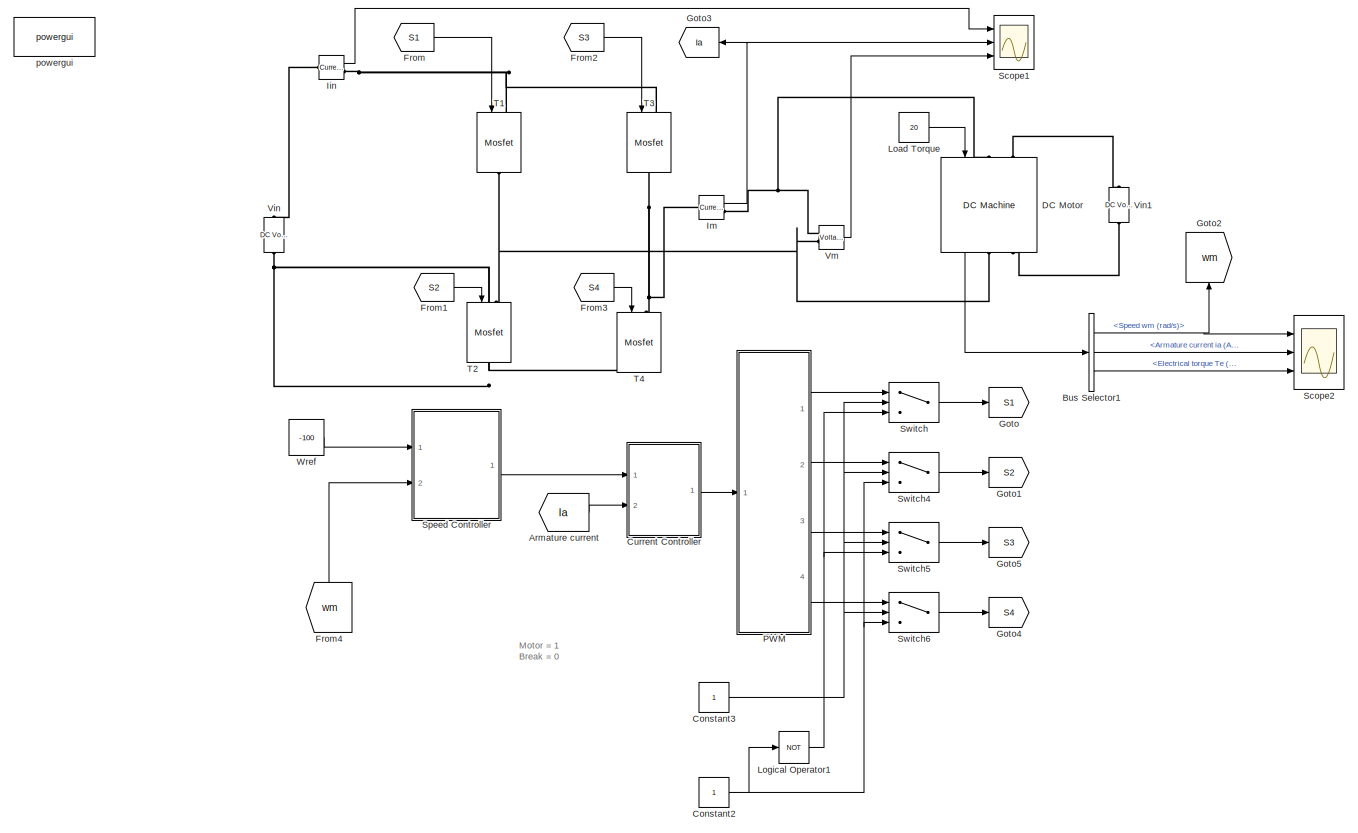
[diagram: root canvas - part 1/1, most of the canvas]
MODEL slx_14fbf402b7de
KIND model
CONFIG AbsTol = auto
CONFIG EnableMultiTasking = off
CONFIG FixedStep = auto
CONFIG MaxStep = auto
CONFIG MinStep = auto
CONFIG RelTol = 1e-3
CONFIG SampleTimeConstraint = Unconstrained
CONFIG Solver = VariableStepAuto
CONFIG SolverName = VariableStepAuto
CONFIG StartTime = 0.0
CONFIG StopTime = inf
BLOCK [From] Armature current
  GotoTag = Ia
BLOCK [BusSelector] Bus Selector1
  OutputAsBus = off
  OutputSignals = Speed wm (rad/s),Armature current ia (A),Electrical torque Te (n m)
  Ports = [1, 3]
BLOCK [Constant] Constant2
BLOCK [Constant] Constant3
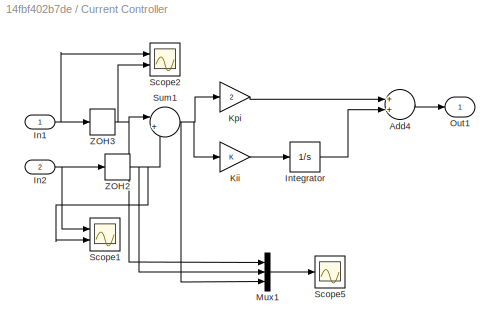
BLOCK [SubSystem] Current Controller
  Ports = [2, 1]
  RequestExecContextInheritance = off
BLOCK [Sum] Current Controller/Add4
  InputSameDT = off
  OutDataTypeStr = Inherit: Inherit via internal rule
  Ports = [2, 1]
  SaturateOnIntegerOverflow = off
BLOCK [Inport] Current Controller/In1
  IconDisplay = Port number
BLOCK [Inport] Current Controller/In2
  IconDisplay = Port number
  Port = 2
BLOCK [Integrator] Current Controller/Integrator
  Ports = [1, 1]
BLOCK [Gain] Current Controller/Kii
  OutDataTypeStr = Inherit: Inherit via internal rule
  ParamDataTypeStr = Inherit: Inherit via internal rule
  SaturateOnIntegerOverflow = off
BLOCK [Gain] Current Controller/Kpi
  Gain = 2
  OutDataTypeStr = Inherit: Inherit via internal rule
  ParamDataTypeStr = Inherit: Inherit via internal rule
  SaturateOnIntegerOverflow = off
BLOCK [Mux] Current Controller/Mux1
  DisplayOption = bar
  Inputs = 3
  Ports = [3, 1]
BLOCK [Outport] Current Controller/Out1
  IconDisplay = Port number
  VectorParamsAs1DForOutWhenUnconnected = off
BLOCK [Scope] Current Controller/Scope1
  Floating = off
  NumInputPorts = 2
  Ports = [2]
  ScopeSpecificationString = Simulink.scopes.TimeScopeBlockCfg('CurrentConfiguration', extmgr.ConfigurationSet(extmgr.Configuration('Core','General UI',true,'FigureColor',[1 1 1]),extmgr.Configuration('Core','Source UI',true),extmgr.Configuration('Sources','WiredSimulink',true,'DataLoggingVariableName','ScopeData3','DataLoggingSaveFormat','Array','DataLoggingDecimation','1','DataLoggingDecimateData',true),extmgr.Configuration...<+2748ch>
BLOCK [Scope] Current Controller/Scope2
  Floating = off
  NumInputPorts = 2
  Ports = [2]
  ScopeSpecificationString = Simulink.scopes.TimeScopeBlockCfg('CurrentConfiguration', extmgr.ConfigurationSet(extmgr.Configuration('Core','General UI',true,'FigureColor',[1 1 1]),extmgr.Configuration('Core','Source UI',true),extmgr.Configuration('Sources','WiredSimulink',true,'DataLoggingVariableName','ScopeData4','DataLoggingSaveFormat','Array','DataLoggingDecimation','1','DataLoggingDecimateData',true),extmgr.Configuration...<+2748ch>
BLOCK [Scope] Current Controller/Scope5
  Floating = off
  NumInputPorts = 1
  Ports = [1]
  ScopeSpecificationString = Simulink.scopes.TimeScopeBlockCfg('CurrentConfiguration', extmgr.ConfigurationSet(extmgr.Configuration('Core','General UI',true,'FigureColor',[1 1 1]),extmgr.Configuration('Core','Source UI',true),extmgr.Configuration('Sources','WiredSimulink',true,'DataLoggingVariableName','ScopeData5','DataLoggingSaveFormat','Array','DataLoggingDecimation','1','DataLoggingDecimateData',true),extmgr.Configuration...<+2748ch>
BLOCK [Sum] Current Controller/Sum1
  IconShape = round
  InputSameDT = off
  Inputs = |+-
  OutDataTypeStr = Inherit: Inherit via internal rule
  Ports = [2, 1]
  SaturateOnIntegerOverflow = off
BLOCK [ZeroOrderHold] Current Controller/ZOH2
  SampleTime = 1e-4
BLOCK [ZeroOrderHold] Current Controller/ZOH3
  SampleTime = 1e-4
BLOCK [Reference] DC Motor  REF=powerlib/Machines/DC Machine
  Ports = [1, 1, 0, 0, 0, 2, 2]
  SourceBlock = powerlib/Machines/DC Machine
  SourceProductBaseCode = PS
  SourceProductName = Simscape Electrical
  SourceType = DC machine
BLOCK [From] From
  GotoTag = S1
BLOCK [From] From1
  GotoTag = S2
BLOCK [From] From2
  GotoTag = S3
BLOCK [From] From3
  GotoTag = S4
BLOCK [From] From4
  GotoTag = wm
BLOCK [Goto] Goto
  GotoTag = S1
BLOCK [Goto] Goto1
  GotoTag = S2
BLOCK [Goto] Goto2
  GotoTag = wm
BLOCK [Goto] Goto3
  GotoTag = Ia
BLOCK [Goto] Goto4
  GotoTag = S4
BLOCK [Goto] Goto5
  GotoTag = S3
BLOCK [Reference] Iin  REF=powerlib/Measurements/Current Measurement
  Ports = [0, 1, 0, 0, 0, 1, 1]
  SourceBlock = powerlib/Measurements/Current Measurement
  SourceProductBaseCode = PS
  SourceProductName = Simscape Electrical
  SourceType = Current Measurement
  UserDataPersistent = on
BLOCK [Reference] Im  REF=powerlib/Measurements/Current Measurement
  Ports = [0, 1, 0, 0, 0, 1, 1]
  SourceBlock = powerlib/Measurements/Current Measurement
  SourceProductBaseCode = PS
  SourceProductName = Simscape Electrical
  SourceType = Current Measurement
  UserDataPersistent = on
BLOCK [Constant] Load Torque
  Value = 20
BLOCK [Logic] Logical Operator1
  AllPortsSameDT = off
  Operator = NOT
  OutDataTypeStr = boolean
  Ports = [1, 1]
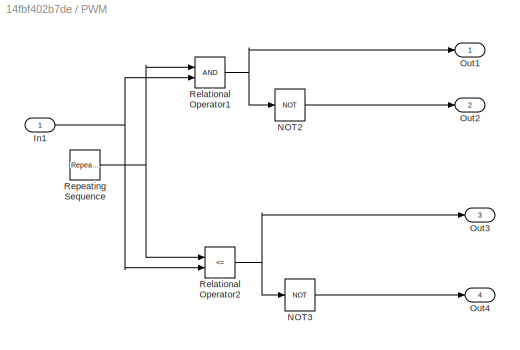
BLOCK [SubSystem] PWM
  Ports = [1, 4]
  RequestExecContextInheritance = off
BLOCK [Inport] PWM/In1
  IconDisplay = Port number
BLOCK [Logic] PWM/NOT2
  AllPortsSameDT = off
  IconShape = distinctive
  Operator = NOT
  OutDataTypeStr = boolean
  Ports = [1, 1]
BLOCK [Logic] PWM/NOT3
  AllPortsSameDT = off
  IconShape = distinctive
  Operator = NOT
  OutDataTypeStr = boolean
  Ports = [1, 1]
BLOCK [Outport] PWM/Out1
  IconDisplay = Port number
  VectorParamsAs1DForOutWhenUnconnected = off
BLOCK [Outport] PWM/Out2
  IconDisplay = Port number
  Port = 2
  VectorParamsAs1DForOutWhenUnconnected = off
BLOCK [Outport] PWM/Out3
  IconDisplay = Port number
  Port = 3
  VectorParamsAs1DForOutWhenUnconnected = off
BLOCK [Outport] PWM/Out4
  IconDisplay = Port number
  Port = 4
  VectorParamsAs1DForOutWhenUnconnected = off
BLOCK [RelationalOperator] PWM/Relational Operator1
  InputSameDT = off
  OutDataTypeStr = boolean
  Ports = [2, 1]
BLOCK [RelationalOperator] PWM/Relational Operator2
  InputSameDT = off
  Operator = <=
  OutDataTypeStr = boolean
  Ports = [2, 1]
BLOCK [Reference] PWM/Repeating Sequence  REF=simulink/Sources/Repeating
Sequence
  Ports = [0, 1]
  SourceBlock = simulink/Sources/Repeating\nSequence
  SourceProductBaseCode = SL
  SourceProductName = Simulink
  SourceType = Repeating table
BLOCK [Scope] Scope1
  Floating = off
  NumInputPorts = 3
  Ports = [3]
  ScopeSpecificationString = Simulink.scopes.TimeScopeBlockCfg('CurrentConfiguration', extmgr.ConfigurationSet(extmgr.Configuration('Core','General UI',true),extmgr.Configuration('Core','Source UI',true),extmgr.Configuration('Sources','WiredSimulink',true,'DataLoggingVariableName','ScopeData2'),extmgr.Configuration('Visuals','Time Domain',true,'SerializedDisplays',{struct('MinYLimReal','-33.88985','MaxYLimReal','33.9018','YLa...<+2808ch>
BLOCK [Scope] Scope2
  Floating = off
  NumInputPorts = 3
  Ports = [3]
  ScopeSpecificationString = Simulink.scopes.TimeScopeBlockCfg('CurrentConfiguration', extmgr.ConfigurationSet(extmgr.Configuration('Core','General UI',true,'FigureColor',[1 1 1]),extmgr.Configuration('Core','Source UI',true),extmgr.Configuration('Sources','WiredSimulink',true),extmgr.Configuration('Visuals','Time Domain',true,'SerializedDisplays',{struct('MinYLimReal','-147.62397','MaxYLimReal','282.66227','YLabelReal','','M...<+3211ch>
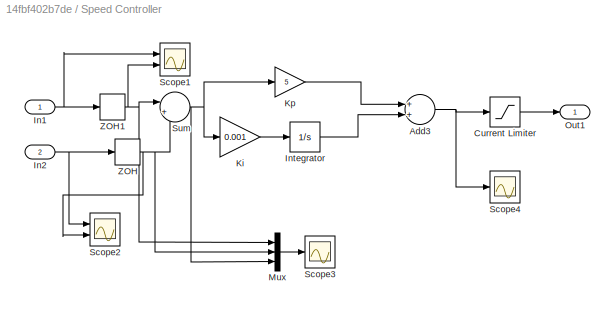
BLOCK [SubSystem] Speed Controller
  Ports = [2, 1]
  RequestExecContextInheritance = off
BLOCK [Sum] Speed Controller/Add3
  InputSameDT = off
  OutDataTypeStr = Inherit: Inherit via internal rule
  Ports = [2, 1]
  SaturateOnIntegerOverflow = off
BLOCK [Saturate] Speed Controller/Current Limiter
  InputPortMap = u0
  LowerLimit = 0
  Ports = [1, 1]
  UpperLimit = 50
BLOCK [Inport] Speed Controller/In1
  IconDisplay = Port number
BLOCK [Inport] Speed Controller/In2
  IconDisplay = Port number
  Port = 2
BLOCK [Integrator] Speed Controller/Integrator
  Ports = [1, 1]
BLOCK [Gain] Speed Controller/Ki
  Gain = 0.001
  OutDataTypeStr = Inherit: Inherit via internal rule
  ParamDataTypeStr = Inherit: Inherit via internal rule
  SaturateOnIntegerOverflow = off
BLOCK [Gain] Speed Controller/Kp
  Gain = 5
  OutDataTypeStr = Inherit: Inherit via internal rule
  ParamDataTypeStr = Inherit: Inherit via internal rule
  SaturateOnIntegerOverflow = off
BLOCK [Mux] Speed Controller/Mux
  DisplayOption = bar
  Inputs = 3
  Ports = [3, 1]
BLOCK [Outport] Speed Controller/Out1
  IconDisplay = Port number
  VectorParamsAs1DForOutWhenUnconnected = off
BLOCK [Scope] Speed Controller/Scope1
  Floating = off
  NumInputPorts = 2
  Ports = [2]
  ScopeSpecificationString = Simulink.scopes.TimeScopeBlockCfg('CurrentConfiguration', extmgr.ConfigurationSet(extmgr.Configuration('Core','General UI',true,'FigureColor',[1 1 1]),extmgr.Configuration('Core','Source UI',true),extmgr.Configuration('Sources','WiredSimulink',true,'DataLoggingVariableName','ScopeData1','DataLoggingSaveFormat','Array','DataLoggingDecimation','1','DataLoggingDecimateData',true),extmgr.Configuration...<+3466ch>
BLOCK [Scope] Speed Controller/Scope2
  Floating = off
  NumInputPorts = 2
  Ports = [2]
  ScopeSpecificationString = Simulink.scopes.TimeScopeBlockCfg('CurrentConfiguration', extmgr.ConfigurationSet(extmgr.Configuration('Core','General UI',true,'FigureColor',[1 1 1]),extmgr.Configuration('Core','Source UI',true),extmgr.Configuration('Sources','WiredSimulink',true,'DataLoggingVariableName','ScopeData2','DataLoggingSaveFormat','Array','DataLoggingDecimation','1','DataLoggingDecimateData',true),extmgr.Configuration...<+2742ch>
BLOCK [Scope] Speed Controller/Scope3
  Floating = off
  NumInputPorts = 1
  Ports = [1]
  ScopeSpecificationString = Simulink.scopes.TimeScopeBlockCfg('CurrentConfiguration', extmgr.ConfigurationSet(extmgr.Configuration('Core','General UI',true,'FigureColor',[1 1 1]),extmgr.Configuration('Core','Source UI',true),extmgr.Configuration('Sources','WiredSimulink',true,'DataLoggingVariableName','ScopeData3','DataLoggingSaveFormat','Array','DataLoggingDecimation','1','DataLoggingDecimateData',true),extmgr.Configuration...<+2742ch>
BLOCK [Scope] Speed Controller/Scope4
  Floating = off
  NumInputPorts = 1
  Ports = [1]
  ScopeSpecificationString = Simulink.scopes.TimeScopeBlockCfg('CurrentConfiguration', extmgr.ConfigurationSet(extmgr.Configuration('Core','General UI',true,'FigureColor',[1 1 1]),extmgr.Configuration('Core','Source UI',true),extmgr.Configuration('Sources','WiredSimulink',true,'DataLoggingVariableName','ScopeData4','DataLoggingSaveFormat','Array','DataLoggingDecimation','1','DataLoggingDecimateData',true),extmgr.Configuration...<+2715ch>
BLOCK [Sum] Speed Controller/Sum
  IconShape = round
  InputSameDT = off
  Inputs = |+-
  OutDataTypeStr = Inherit: Inherit via internal rule
  Ports = [2, 1]
  SaturateOnIntegerOverflow = off
BLOCK [ZeroOrderHold] Speed Controller/ZOH
  SampleTime = 1e-4
BLOCK [ZeroOrderHold] Speed Controller/ZOH1
  SampleTime = 1e-4
BLOCK [Switch] Switch
  Criteria = u2 > Threshold
  InputSameDT = off
  SaturateOnIntegerOverflow = off
BLOCK [Switch] Switch4
  Criteria = u2 > Threshold
  InputSameDT = off
  SaturateOnIntegerOverflow = off
BLOCK [Switch] Switch5
  Criteria = u2 > Threshold
  InputSameDT = off
  SaturateOnIntegerOverflow = off
BLOCK [Switch] Switch6
  Criteria = u2 > Threshold
  InputSameDT = off
  SaturateOnIntegerOverflow = off
BLOCK [Reference] T1  REF=powerlib/Power
Electronics/Mosfet
  Ports = [1, 0, 0, 0, 0, 1, 1]
  SourceBlock = powerlib/Power\nElectronics/Mosfet
  SourceProductBaseCode = PS
  SourceProductName = Simscape Electrical
  SourceType = Mosfet
BLOCK [Reference] T2  REF=powerlib/Power
Electronics/Mosfet
  Ports = [1, 0, 0, 0, 0, 1, 1]
  SourceBlock = powerlib/Power\nElectronics/Mosfet
  SourceProductBaseCode = PS
  SourceProductName = Simscape Electrical
  SourceType = Mosfet
BLOCK [Reference] T3  REF=powerlib/Power
Electronics/Mosfet
  Ports = [1, 0, 0, 0, 0, 1, 1]
  SourceBlock = powerlib/Power\nElectronics/Mosfet
  SourceProductBaseCode = PS
  SourceProductName = Simscape Electrical
  SourceType = Mosfet
BLOCK [Reference] T4  REF=powerlib/Power
Electronics/Mosfet
  Ports = [1, 0, 0, 0, 0, 1, 1]
  SourceBlock = powerlib/Power\nElectronics/Mosfet
  SourceProductBaseCode = PS
  SourceProductName = Simscape Electrical
  SourceType = Mosfet
BLOCK [Reference] Vin  REF=powerlib/Electrical
Sources/DC Voltage Source
  Ports = [0, 0, 0, 0, 0, 1, 1]
  SourceBlock = powerlib/Electrical\nSources/DC Voltage Source
  SourceProductBaseCode = PS
  SourceProductName = Simscape Electrical
  SourceType = DC Voltage Source
BLOCK [Reference] Vin1  REF=powerlib/Electrical
Sources/DC Voltage Source
  Ports = [0, 0, 0, 0, 0, 1, 1]
  SourceBlock = powerlib/Electrical\nSources/DC Voltage Source
  SourceProductBaseCode = PS
  SourceProductName = Simscape Electrical
  SourceType = DC Voltage Source
BLOCK [Reference] Vm  REF=powerlib/Measurements/Voltage Measurement
  Ports = [0, 1, 0, 0, 0, 2]
  SourceBlock = powerlib/Measurements/Voltage Measurement
  SourceProductBaseCode = PS
  SourceProductName = Simscape Electrical
  SourceType = Voltage Measurement
  UserDataPersistent = on
BLOCK [Constant] Wref
  SampleTime = -1
  Value = -100
  VectorParams1D = off
BLOCK [Reference] powergui  REF=powerlib/powergui
  Ports = []
  Priority = 1
  SourceBlock = powerlib/powergui
  SourceProductBaseCode = PS
  SourceProductName = Simscape Electrical
  SourceType = PSB option menu block
ANNOTATION (root): Motor = 1 Break = 0
LINE Armature current:1 -> Current Controller:2
NET Bus Selector1:1 -> Goto2:1, Scope2:1
LINE Bus Selector1:2 -> Scope2:2
LINE Bus Selector1:3 -> Scope2:3
NET Constant2:1 -> Logical Operator1:1, Switch4:3, Switch6:3
NET Constant3:1 -> Switch4:2, Switch5:2, Switch6:2, Switch:2
LINE Current Controller/Add4:1 -> Current Controller/Out1:1
NET Current Controller/In1:1 -> Current Controller/Scope2:1, Current Controller/ZOH3:1
NET Current Controller/In2:1 -> Current Controller/Scope1:1, Current Controller/ZOH2:1
LINE Current Controller/Integrator:1 -> Current Controller/Add4:2
LINE Current Controller/Kii:1 -> Current Controller/Integrator:1
LINE Current Controller/Kpi:1 -> Current Controller/Add4:1
LINE Current Controller/Mux1:1 -> Current Controller/Scope5:1
NET Current Controller/Sum1:1 -> Current Controller/Kii:1, Current Controller/Kpi:1, Current Controller/Mux1:3
NET Current Controller/ZOH2:1 -> Current Controller/Mux1:2, Current Controller/Scope1:2, Current Controller/Sum1:2
NET Current Controller/ZOH3:1 -> Current Controller/Mux1:1, Current Controller/Scope2:2, Current Controller/Sum1:1
LINE Current Controller:1 -> PWM:1
LINE DC Motor:1 -> Bus Selector1:1
LINE From1:1 -> T2:1
LINE From2:1 -> T3:1
LINE From3:1 -> T4:1
LINE From4:1 -> Speed Controller:2
LINE From:1 -> T1:1
LINE Iin:1 -> Scope1:1
NET Im:1 -> Goto3:1, Scope1:2
LINE Load Torque:1 -> DC Motor:1
NET Logical Operator1:1 -> Switch5:3, Switch:3
NET PWM/In1:1 -> PWM/Relational Operator1:2, PWM/Relational Operator2:2
LINE PWM/NOT2:1 -> PWM/Out2:1
LINE PWM/NOT3:1 -> PWM/Out4:1
NET PWM/Relational Operator1:1 -> PWM/NOT2:1, PWM/Out1:1
NET PWM/Relational Operator2:1 -> PWM/NOT3:1, PWM/Out3:1
NET PWM/Repeating Sequence:1 -> PWM/Relational Operator1:1, PWM/Relational Operator2:1
LINE PWM:1 -> Switch:1
LINE PWM:2 -> Switch4:1
LINE PWM:3 -> Switch5:1
LINE PWM:4 -> Switch6:1
NET Speed Controller/Add3:1 -> Speed Controller/Current Limiter:1, Speed Controller/Scope4:1
LINE Speed Controller/Current Limiter:1 -> Speed Controller/Out1:1
NET Speed Controller/In1:1 -> Speed Controller/Scope1:1, Speed Controller/ZOH1:1
NET Speed Controller/In2:1 -> Speed Controller/Scope2:1, Speed Controller/ZOH:1
LINE Speed Controller/Integrator:1 -> Speed Controller/Add3:2
LINE Speed Controller/Ki:1 -> Speed Controller/Integrator:1
LINE Speed Controller/Kp:1 -> Speed Controller/Add3:1
LINE Speed Controller/Mux:1 -> Speed Controller/Scope3:1
NET Speed Controller/Sum:1 -> Speed Controller/Ki:1, Speed Controller/Kp:1, Speed Controller/Mux:3
NET Speed Controller/ZOH1:1 -> Speed Controller/Mux:1, Speed Controller/Scope1:2, Speed Controller/Sum:1
NET Speed Controller/ZOH:1 -> Speed Controller/Mux:2, Speed Controller/Scope2:2, Speed Controller/Sum:2
LINE Speed Controller:1 -> Current Controller:1
LINE Switch4:1 -> Goto1:1
LINE Switch5:1 -> Goto5:1
LINE Switch6:1 -> Goto4:1
LINE Switch:1 -> Goto:1
LINE Vm:1 -> Scope1:3
LINE Wref:1 -> Speed Controller:1
PNET net1: DC Motor:LConn1 -- Im:RConn1 -- Vm:LConn1
PLINE DC Motor:LConn2 -- Vin1:RConn1
PNET net2: DC Motor:RConn1 -- T1:RConn1 -- T2:LConn1 -- Vm:LConn2
PLINE DC Motor:RConn2 -- Vin1:LConn1
PLINE Iin:LConn1 -- Vin:RConn1
PNET net3: Iin:RConn1 -- T1:LConn1 -- T3:LConn1
PNET net4: Im:LConn1 -- T3:RConn1 -- T4:LConn1
PNET net5: T2:RConn1 -- T4:RConn1 -- Vin:LConn1
note: NET lines group one-source signal fan-out (src -> all destinations, sorted); 1:1 wires keep LINE; PNET lines group multi-terminal physical nets as a canonical sorted terminal list (undirected conserving connections); 2-terminal nets keep the pairwise PLINE form
